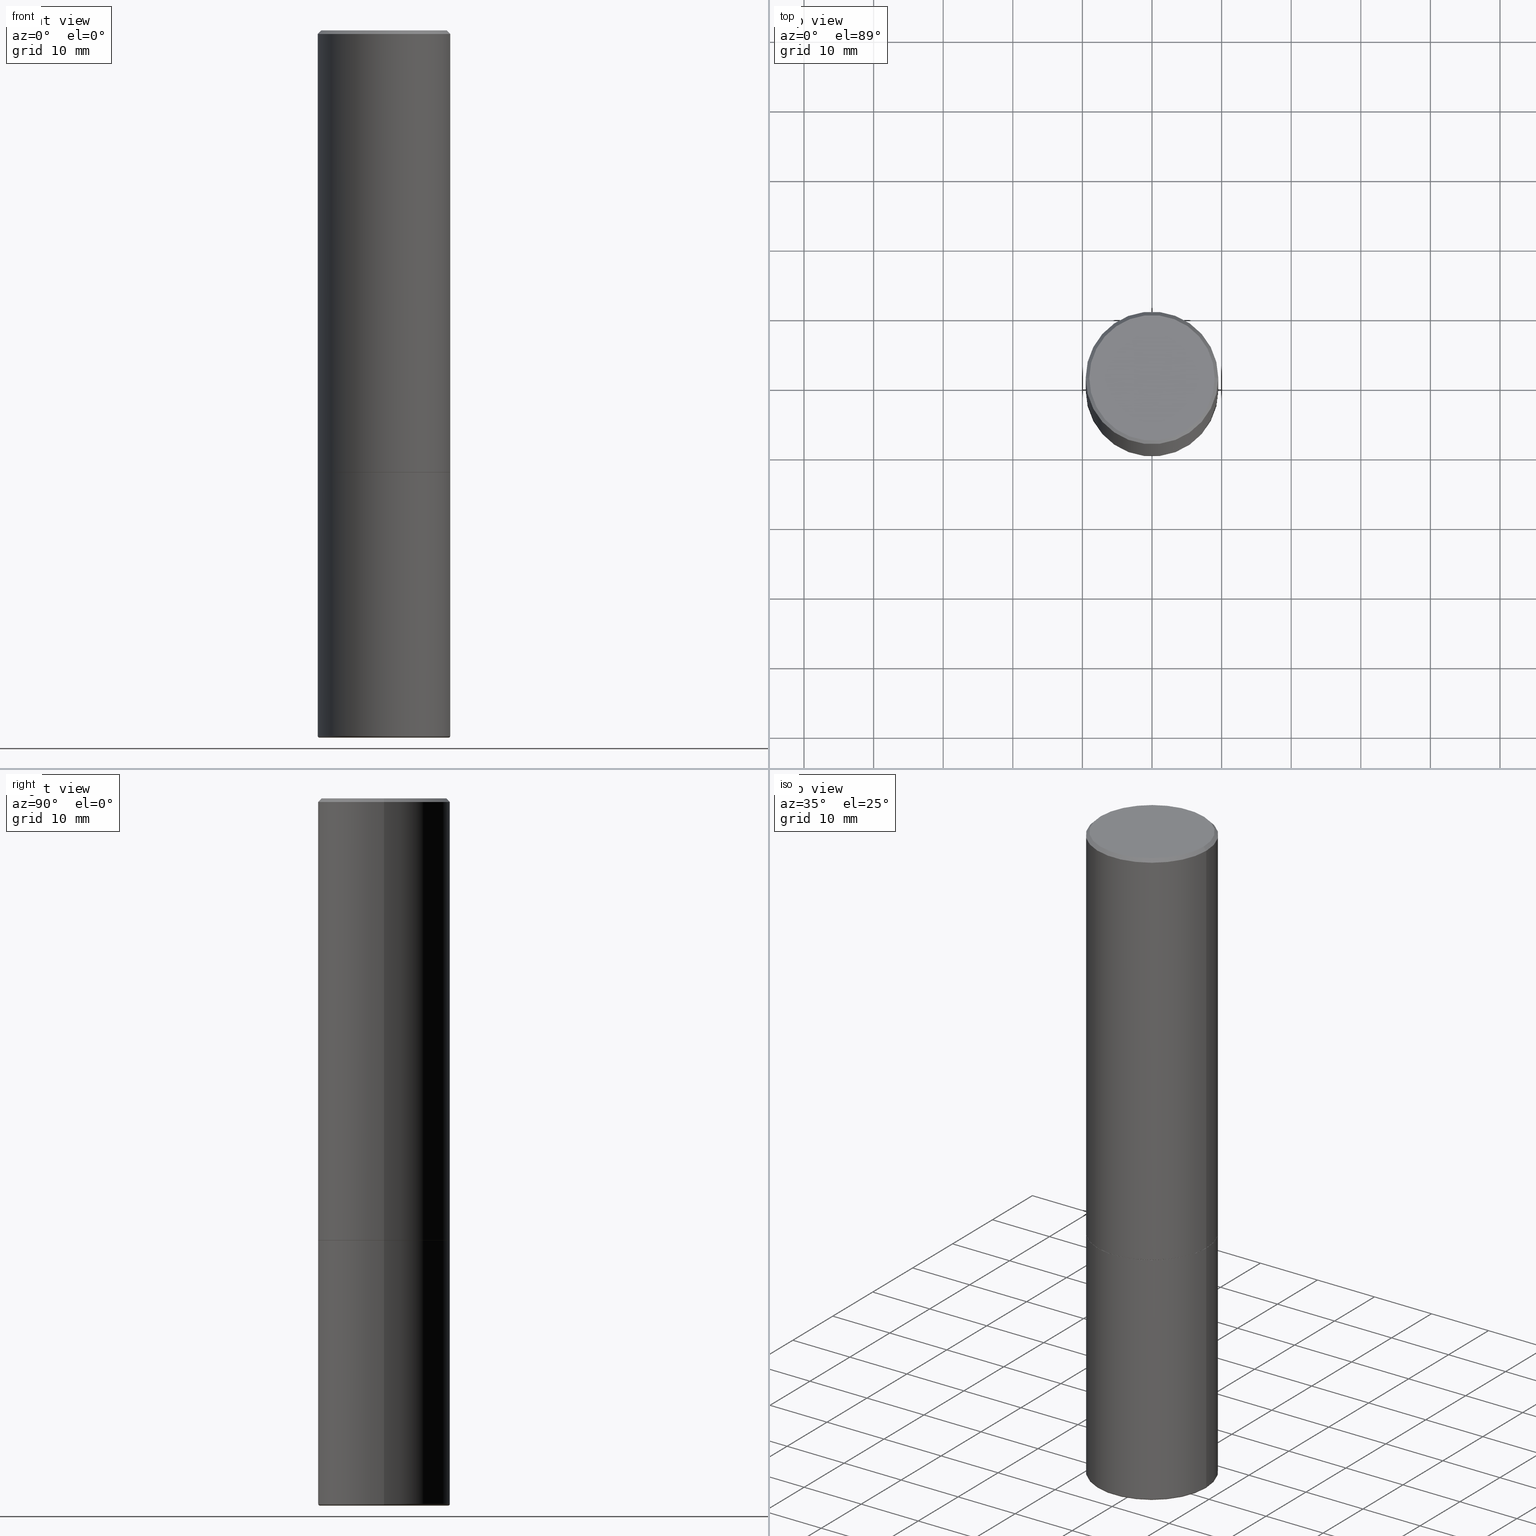
[diagram: canonical four-view strip — front | top / right | iso, engineering-drawing reading convention]
A machine part, canonical four-view strip (front | top / right | iso — engineering-drawing reading convention). The complete STEP part file that produces these views, byte-faithful:
ISO-10303-21;
HEADER;
FILE_DESCRIPTION (( 'STEP AP203' ),
    '1' );
FILE_NAME ('38864.STEP',
    '2024-03-03T17:59:17',
    ( '' ),
    ( '' ),
    'SwSTEP 2.0',
    'SolidWorks 2023',
    '' );
FILE_SCHEMA (( 'CONFIG_CONTROL_DESIGN' ));
ENDSEC;

DATA;
#1 = FACE_OUTER_BOUND ( 'NONE', #300, .T. ) ;
#2 = CC_DESIGN_PERSON_AND_ORGANIZATION_ASSIGNMENT ( #75, #359, ( #257 ) ) ;
#3 = CARTESIAN_POINT ( 'NONE',  ( 6.113672015462842613E-29, -8.728703347107864943E-15, -2.500000000000000000 ) ) ;
#4 = EDGE_CURVE ( 'NONE', #271, #11, #323, .T. ) ;
#5 = AXIS2_PLACEMENT_3D ( 'NONE', #306, #101, #67 ) ;
#6 = DIRECTION ( 'NONE',  ( -2.445468806185136597E-29, 3.491481338843145583E-15, 1.000000000000000000 ) ) ;
#7 = COORDINATED_UNIVERSAL_TIME_OFFSET ( 5, 0, .BEHIND. ) ;
#8 = ADVANCED_FACE ( 'NONE', ( #411 ), #65, .T. ) ;
#9 = DIRECTION ( 'NONE',  ( -1.000000000000000000, 7.105427357601049190E-15, 0.000000000000000000 ) ) ;
#10 = CARTESIAN_POINT ( 'NONE',  ( 0.3750000000000000555, -1.134731435124021338E-14, -2.500000000000000000 ) ) ;
#11 = VERTEX_POINT ( 'NONE', #324 ) ;
#12 = CARTESIAN_POINT ( 'NONE',  ( 9.757420536678694842E-29, -1.393101054198414910E-14, -3.989999999999999769 ) ) ;
#13 = DIRECTION ( 'NONE',  ( -2.445468806185136877E-29, 3.491481338843145188E-15, 1.000000000000000000 ) ) ;
#14 = PERSON_AND_ORGANIZATION ( #307, #347 ) ;
#15 = VECTOR ( 'NONE', #373, 39.37007874015748143 ) ;
#16 = ORIENTED_EDGE ( 'NONE', *, *, #236, .F. ) ;
#17 = FACE_OUTER_BOUND ( 'NONE', #212, .T. ) ;
#18 = ORIENTED_EDGE ( 'NONE', *, *, #56, .T. ) ;
#19 = ORIENTED_EDGE ( 'NONE', *, *, #275, .F. ) ;
#20 = DIRECTION ( 'NONE',  ( 1.000000000000000000, -6.982962677686265922E-15, 0.000000000000000000 ) ) ;
#21 = AXIS2_PLACEMENT_3D ( 'NONE', #74, #206, #40 ) ;
#22 = LOCAL_TIME ( 12, 59, 17.00000000000000000, #7 ) ;
#23 = APPLICATION_CONTEXT ( 'configuration controlled 3d designs of mechanical parts and assemblies' ) ;
#24 = CALENDAR_DATE ( 2024, 3, 3 ) ;
#25 = EDGE_LOOP ( 'NONE', ( #397, #50 ) ) ;
#26 = DATE_AND_TIME ( #155, #327 ) ;
#27 = ORIENTED_EDGE ( 'NONE', *, *, #284, .T. ) ;
#28 = PERSON_AND_ORGANIZATION_ROLE ( 'creator' ) ;
#29 = AXIS2_PLACEMENT_3D ( 'NONE', #128, #286, #299 ) ;
#30 = APPROVAL ( #266, 'UNSPECIFIED' ) ;
#31 = LINE ( 'NONE', #380, #87 ) ;
#32 = LINE ( 'NONE', #33, #15 ) ;
#33 = CARTESIAN_POINT ( 'NONE',  ( -0.3749999999999999445, 2.664535259100375303E-15, -1.844600658845589318E-29 ) ) ;
#34 = AXIS2_PLACEMENT_3D ( 'NONE', #12, #49, #325 ) ;
#35 = EDGE_CURVE ( 'NONE', #267, #178, #57, .T. ) ;
#36 = DIRECTION ( 'NONE',  ( -2.445468806185136597E-29, 3.491481338843145583E-15, 1.000000000000000000 ) ) ;
#37 = DIRECTION ( 'NONE',  ( -1.000000000000000000, 6.982962677686265922E-15, 0.000000000000000000 ) ) ;
#38 = EDGE_CURVE ( 'NONE', #217, #210, #31, .T. ) ;
#39 = AXIS2_PLACEMENT_3D ( 'NONE', #262, #66, #144 ) ;
#40 = DIRECTION ( 'NONE',  ( 1.000000000000000000, -6.982962677686264344E-15, 0.000000000000000000 ) ) ;
#41 = PRODUCT_DEFINITION_SHAPE ( 'NONE', 'NONE',  #166 ) ;
#42 = CIRCLE ( 'NONE', #162, 0.3739999999999999991 ) ;
#43 = ORIENTED_EDGE ( 'NONE', *, *, #150, .F. ) ;
#44 = EDGE_CURVE ( 'NONE', #267, #240, #116, .T. ) ;
#45 = CC_DESIGN_APPROVAL ( #30, ( #257 ) ) ;
#46 = ORIENTED_EDGE ( 'NONE', *, *, #404, .T. ) ;
#47 = ADVANCED_FACE ( 'NONE', ( #350 ), #392, .T. ) ;
#48 = DIRECTION ( 'NONE',  ( -2.445468806185136597E-29, 3.491481338843145583E-15, 1.000000000000000000 ) ) ;
#49 = DIRECTION ( 'NONE',  ( -2.445468806185136597E-29, 3.491481338843145583E-15, 1.000000000000000000 ) ) ;
#50 = ORIENTED_EDGE ( 'NONE', *, *, #284, .F. ) ;
#51 = ORIENTED_EDGE ( 'NONE', *, *, #250, .T. ) ;
#52 = ORIENTED_EDGE ( 'NONE', *, *, #241, .T. ) ;
#53 = DATE_AND_TIME ( #256, #410 ) ;
#54 = ORIENTED_EDGE ( 'NONE', *, *, #196, .F. ) ;
#55 = CARTESIAN_POINT ( 'NONE',  ( -0.3749999999999999445, -1.126647528288377341E-14, -3.989999999999999769 ) ) ;
#56 = EDGE_CURVE ( 'NONE', #238, #88, #204, .T. ) ;
#57 = CIRCLE ( 'NONE', #29, 0.01000000000000009909 ) ;
#58 = CARTESIAN_POINT ( 'NONE',  ( 0.3649999999999999356, -1.651470673272807063E-14, -4.000000000000000000 ) ) ;
#59 = EDGE_CURVE ( 'NONE', #363, #210, #175, .T. ) ;
#60 = LINE ( 'NONE', #280, #263 ) ;
#61 = DIRECTION ( 'NONE',  ( 1.000000000000000000, -6.982962677686268288E-15, 0.000000000000000000 ) ) ;
#62 = APPROVAL ( #297, 'UNSPECIFIED' ) ;
#63 = AXIS2_PLACEMENT_3D ( 'NONE', #136, #389, #255 ) ;
#64 = DIRECTION ( 'NONE',  ( -2.445468806185136597E-29, 3.491481338843145583E-15, 1.000000000000000000 ) ) ;
#65 = CYLINDRICAL_SURFACE ( 'NONE', #355, 0.3750000000000002220 ) ;
#66 = DIRECTION ( 'NONE',  ( -2.438088387897960049E-29, 3.491481338843145188E-15, 1.000000000000000000 ) ) ;
#67 = DIRECTION ( 'NONE',  ( 1.000000000000000000, -6.982962677686265922E-15, 0.000000000000000000 ) ) ;
#68 = DIRECTION ( 'NONE',  ( 1.000000000000000000, -6.982962677686263555E-15, 0.000000000000000000 ) ) ;
#69 = DIRECTION ( 'NONE',  ( -2.445468806185136597E-29, 3.491481338843145583E-15, 1.000000000000000000 ) ) ;
#70 = DIRECTION ( 'NONE',  ( -1.000000000000000000, 6.982962677686265922E-15, -4.876176775795935793E-29 ) ) ;
#71 = EDGE_CURVE ( 'NONE', #210, #363, #169, .T. ) ;
#72 = AXIS2_PLACEMENT_3D ( 'NONE', #281, #115, #181 ) ;
#73 = APPROVAL_PERSON_ORGANIZATION ( #122, #30, #336 ) ;
#74 = CARTESIAN_POINT ( 'NONE',  ( 6.113672015462842613E-29, -8.728703347107864943E-15, -2.500000000000000000 ) ) ;
#75 = PERSON_AND_ORGANIZATION ( #307, #347 ) ;
#76 = FACE_OUTER_BOUND ( 'NONE', #408, .T. ) ;
#77 = APPLICATION_PROTOCOL_DEFINITION ( 'international standard', 'config_control_design', 1994, #23 ) ;
#78 = AXIS2_PLACEMENT_3D ( 'NONE', #161, #417, #20 ) ;
#79 = VERTEX_POINT ( 'NONE', #315 ) ;
#80 = CIRCLE ( 'NONE', #369, 0.01000000000000009909 ) ;
#81 = ORIENTED_EDGE ( 'NONE', *, *, #71, .T. ) ;
#82 = CYLINDRICAL_SURFACE ( 'NONE', #135, 0.3750000000000002220 ) ;
#83 = DATE_TIME_ROLE ( 'creation_date' ) ;
#84 = ORIENTED_EDGE ( 'NONE', *, *, #186, .T. ) ;
#85 = DIMENSIONAL_EXPONENTS ( 1.000000000000000000, 0.000000000000000000, 0.000000000000000000, 0.000000000000000000, 0.000000000000000000, 0.000000000000000000, 0.000000000000000000 ) ;
#86 = ORIENTED_EDGE ( 'NONE', *, *, #270, .T. ) ;
#87 = VECTOR ( 'NONE', #100, 39.37007874015748143 ) ;
#88 = VERTEX_POINT ( 'NONE', #10 ) ;
#89 = CARTESIAN_POINT ( 'NONE',  ( -0.3739999999999999991, -6.065975061016866274E-15, -2.500000000000000000 ) ) ;
#90 = DATE_AND_TIME ( #24, #269 ) ;
#91 = CIRCLE ( 'NONE', #132, 0.3549999999999999822 ) ;
#92 = AXIS2_PLACEMENT_3D ( 'NONE', #258, #69, #318 ) ;
#93 = DIRECTION ( 'NONE',  ( 2.438088387897960049E-29, -3.491481338843145188E-15, -1.000000000000000000 ) ) ;
#94 = DIRECTION ( 'NONE',  ( -2.445468806185136597E-29, 3.491481338843145583E-15, 1.000000000000000000 ) ) ;
#95 = LINE ( 'NONE', #173, #253 ) ;
#96 = CARTESIAN_POINT ( 'NONE',  ( 0.3549999999999999822, -2.538996582575041048E-15, 1.195183497228290556E-16 ) ) ;
#97 = ORIENTED_EDGE ( 'NONE', *, *, #44, .F. ) ;
#98 = CIRCLE ( 'NONE', #326, 0.3739999999999999991 ) ;
#99 = AXIS2_PLACEMENT_3D ( 'NONE', #358, #205, #321 ) ;
#100 = DIRECTION ( 'NONE',  ( 0.7071067811865461294, -7.319954787623251312E-15, -0.7071067811865489050 ) ) ;
#101 = DIRECTION ( 'NONE',  ( -2.445468806185136597E-29, 3.491481338843145583E-15, 1.000000000000000000 ) ) ;
#102 = DIRECTION ( 'NONE',  ( 2.445468806185136597E-29, -3.491481338843145583E-15, -1.000000000000000000 ) ) ;
#103 = DIRECTION ( 'NONE',  ( 2.438088387897960049E-29, -3.491481338843145188E-15, -1.000000000000000000 ) ) ;
#104 = ADVANCED_FACE ( 'NONE', ( #142 ), #378, .T. ) ;
#105 = APPROVAL_DATE_TIME ( #203, #330 ) ;
#106 = CARTESIAN_POINT ( 'NONE',  ( 0.000000000000000000, 0.000000000000000000, 0.000000000000000000 ) ) ;
#107 = FACE_OUTER_BOUND ( 'NONE', #301, .T. ) ;
#108 = AXIS2_PLACEMENT_3D ( 'NONE', #157, #93, #379 ) ;
#109 = AXIS2_PLACEMENT_3D ( 'NONE', #3, #170, #141 ) ;
#110 = APPLICATION_PROTOCOL_DEFINITION ( 'international standard', 'config_control_design', 1994, #287 ) ;
#111 = DIRECTION ( 'NONE',  ( -1.000000000000000000, 6.982962677686265922E-15, 0.000000000000000000 ) ) ;
#112 = CARTESIAN_POINT ( 'NONE',  ( 0.000000000000000000, 0.000000000000000000, 0.000000000000000000 ) ) ;
#113 = PERSON_AND_ORGANIZATION_ROLE ( 'design_owner' ) ;
#114 = ORIENTED_EDGE ( 'NONE', *, *, #316, .T. ) ;
#115 = DIRECTION ( 'NONE',  ( -2.445468806185136597E-29, 3.491481338843145583E-15, 1.000000000000000000 ) ) ;
#116 = CIRCLE ( 'NONE', #415, 0.3649999999999999356 ) ;
#117 = AXIS2_PLACEMENT_3D ( 'NONE', #201, #36, #68 ) ;
#118 = EDGE_LOOP ( 'NONE', ( #291, #237, #334, #121 ) ) ;
#119 = ORIENTED_EDGE ( 'NONE', *, *, #250, .F. ) ;
#120 = CARTESIAN_POINT ( 'NONE',  ( -0.3750000000000001110, 2.548781377355487113E-15, -0.02000000000000008715 ) ) ;
#121 = ORIENTED_EDGE ( 'NONE', *, *, #56, .F. ) ;
#122 = PERSON_AND_ORGANIZATION ( #307, #347 ) ;
#123 = ORIENTED_EDGE ( 'NONE', *, *, #352, .F. ) ;
#124 = AXIS2_PLACEMENT_3D ( 'NONE', #106, #354, #282 ) ;
#125 = ADVANCED_FACE ( 'NONE', ( #168 ), #353, .T. ) ;
#126 = CARTESIAN_POINT ( 'NONE',  ( 0.3739999999999999991, -1.134033138856252894E-14, -2.500000000000000000 ) ) ;
#127 = DIRECTION ( 'NONE',  ( -2.445468806185136597E-29, 3.491481338843145583E-15, 1.000000000000000000 ) ) ;
#128 = CARTESIAN_POINT ( 'NONE',  ( 0.3649999999999999356, -1.647979191933963740E-14, -3.989999999999999769 ) ) ;
#129 = AXIS2_PLACEMENT_3D ( 'NONE', #188, #303, #191 ) ;
#130 = FACE_OUTER_BOUND ( 'NONE', #192, .T. ) ;
#131 = LINE ( 'NONE', #126, #145 ) ;
#132 = AXIS2_PLACEMENT_3D ( 'NONE', #278, #64, #376 ) ;
#133 = CARTESIAN_POINT ( 'NONE',  ( 4.890937612370294178E-31, -6.982962677686321191E-17, -0.02000000000000008715 ) ) ;
#134 = ADVANCED_FACE ( 'NONE', ( #228 ), #259, .F. ) ;
#135 = AXIS2_PLACEMENT_3D ( 'NONE', #229, #198, #381 ) ;
#136 = CARTESIAN_POINT ( 'NONE',  ( 9.781875224740546387E-29, -1.396592535537258233E-14, -4.000000000000000000 ) ) ;
#137 = CALENDAR_DATE ( 2024, 3, 3 ) ;
#138 = DESIGN_CONTEXT ( 'detailed design', #23, 'design' ) ;
#139 = DIRECTION ( 'NONE',  ( 1.000000000000000000, -6.982962677686267499E-15, 0.000000000000000000 ) ) ;
#140 = ORIENTED_EDGE ( 'NONE', *, *, #4, .T. ) ;
#141 = DIRECTION ( 'NONE',  ( 1.000000000000000000, -6.982962677686268288E-15, 0.000000000000000000 ) ) ;
#142 = FACE_OUTER_BOUND ( 'NONE', #233, .T. ) ;
#143 = CARTESIAN_POINT ( 'NONE',  ( 0.3749999999999999445, -1.654962154611649754E-14, -3.989999999999999769 ) ) ;
#144 = DIRECTION ( 'NONE',  ( 1.000000000000000000, -6.982962677686265922E-15, 4.876176775795935793E-29 ) ) ;
#145 = VECTOR ( 'NONE', #371, 39.37007874015748143 ) ;
#146 = CARTESIAN_POINT ( 'NONE',  ( -0.3739999999999999991, -6.071273515365089465E-15, -2.500000000000000000 ) ) ;
#147 = CONICAL_SURFACE ( 'NONE', #99, 0.3739999999999999991, 0.7853981633976873100 ) ;
#148 = CARTESIAN_POINT ( 'NONE',  ( 0.000000000000000000, 0.000000000000000000, 0.000000000000000000 ) ) ;
#149 = PERSON_AND_ORGANIZATION ( #307, #347 ) ;
#150 = EDGE_CURVE ( 'NONE', #88, #238, #361, .T. ) ;
#151 = AXIS2_PLACEMENT_3D ( 'NONE', #234, #6, #199 ) ;
#152 = ORIENTED_EDGE ( 'NONE', *, *, #316, .F. ) ;
#153 = ORIENTED_EDGE ( 'NONE', *, *, #342, .F. ) ;
#154 = ORIENTED_EDGE ( 'NONE', *, *, #236, .T. ) ;
#155 = CALENDAR_DATE ( 2024, 3, 3 ) ;
#156 = AXIS2_PLACEMENT_3D ( 'NONE', #133, #102, #111 ) ;
#157 = CARTESIAN_POINT ( 'NONE',  ( 2.478951750578624209E-15, 0.3549999999999999822, -1.179716700427910864E-15 ) ) ;
#158 = PRODUCT_RELATED_PRODUCT_CATEGORY ( 'detail', '', ( #335 ) ) ;
#159 = APPROVAL_DATE_TIME ( #90, #62 ) ;
#160 = ORIENTED_EDGE ( 'NONE', *, *, #59, .T. ) ;
#161 = CARTESIAN_POINT ( 'NONE',  ( 6.111226546656657010E-29, -8.725211865769021935E-15, -2.499000000000000110 ) ) ;
#162 = AXIS2_PLACEMENT_3D ( 'NONE', #193, #222, #61 ) ;
#163 = CARTESIAN_POINT ( 'NONE',  ( 0.3750000000000001110, -2.642516375941188423E-15, -0.02000000000000008715 ) ) ;
#164 = EDGE_LOOP ( 'NONE', ( #338, #46, #152, #400 ) ) ;
#165 = CARTESIAN_POINT ( 'NONE',  ( -0.3649999999999999356, -1.133752955645978349E-14, -3.989999999999999769 ) ) ;
#166 = PRODUCT_DEFINITION ( 'UNKNOWN', '', #257, #138 ) ;
#167 = LINE ( 'NONE', #349, #184 ) ;
#168 = FACE_OUTER_BOUND ( 'NONE', #118, .T. ) ;
#169 = CIRCLE ( 'NONE', #151, 0.3750000000000001110 ) ;
#170 = DIRECTION ( 'NONE',  ( -2.445468806185136597E-29, 3.491481338843145583E-15, 1.000000000000000000 ) ) ;
#171 = EDGE_CURVE ( 'NONE', #11, #363, #95, .T. ) ;
#172 = ORIENTED_EDGE ( 'NONE', *, *, #352, .T. ) ;
#173 = CARTESIAN_POINT ( 'NONE',  ( -0.3750000000000002220, 2.664535259100377275E-15, -1.844600658845590719E-29 ) ) ;
#174 = PERSON_AND_ORGANIZATION_ROLE ( 'creator' ) ;
#175 = CIRCLE ( 'NONE', #5, 0.3750000000000001110 ) ;
#176 = TOROIDAL_SURFACE ( 'NONE', #34, 0.3649999999999999356, 0.01000000000000009909 ) ;
#177 = MECHANICAL_CONTEXT ( 'NONE', #287, 'mechanical' ) ;
#178 = VERTEX_POINT ( 'NONE', #143 ) ;
#179 = APPROVAL_STATUS ( 'not_yet_approved' ) ;
#180 = EDGE_LOOP ( 'NONE', ( #329, #84, #298, #405 ) ) ;
#181 = DIRECTION ( 'NONE',  ( 1.000000000000000000, -6.982962677686264344E-15, 0.000000000000000000 ) ) ;
#182 = CC_DESIGN_DATE_AND_TIME_ASSIGNMENT ( #26, #83, ( #166 ) ) ;
#183 = ORIENTED_EDGE ( 'NONE', *, *, #270, .F. ) ;
#184 = VECTOR ( 'NONE', #197, 39.37007874015748143 ) ;
#185 = EDGE_LOOP ( 'NONE', ( #52, #140, #123, #183 ) ) ;
#186 = EDGE_CURVE ( 'NONE', #11, #370, #401, .T. ) ;
#187 = EDGE_LOOP ( 'NONE', ( #360, #16, #51, #160 ) ) ;
#188 = CARTESIAN_POINT ( 'NONE',  ( -2.922783960138615261E-45, 4.172960877065252270E-31, 1.195183497228115035E-16 ) ) ;
#189 = AXIS2_PLACEMENT_3D ( 'NONE', #265, #394, #235 ) ;
#190 = CC_DESIGN_SECURITY_CLASSIFICATION ( #402, ( #257 ) ) ;
#191 = DIRECTION ( 'NONE',  ( 1.000000000000000000, -6.982962677686265922E-15, 4.874095744806113407E-29 ) ) ;
#192 = EDGE_LOOP ( 'NONE', ( #216, #27, #86, #214 ) ) ;
#193 = CARTESIAN_POINT ( 'NONE',  ( 6.113672015462842613E-29, -8.728703347107864943E-15, -2.500000000000000000 ) ) ;
#194 = DIRECTION ( 'NONE',  ( -2.445468806185136597E-29, 3.491481338843145583E-15, 1.000000000000000000 ) ) ;
#195 = CIRCLE ( 'NONE', #279, 0.3649999999999999356 ) ;
#196 = EDGE_CURVE ( 'NONE', #273, #178, #226, .T. ) ;
#197 = DIRECTION ( 'NONE',  ( -2.445468806185136877E-29, 3.491481338843145188E-15, 1.000000000000000000 ) ) ;
#198 = DIRECTION ( 'NONE',  ( -2.445468806185136597E-29, 3.491481338843145583E-15, 1.000000000000000000 ) ) ;
#199 = DIRECTION ( 'NONE',  ( 1.000000000000000000, -6.982962677686265922E-15, 0.000000000000000000 ) ) ;
#200 = CALENDAR_DATE ( 2024, 3, 3 ) ;
#201 = CARTESIAN_POINT ( 'NONE',  ( 9.757420536678694842E-29, -1.393101054198414910E-14, -3.989999999999999769 ) ) ;
#202 = CYLINDRICAL_SURFACE ( 'NONE', #92, 0.3749999999999999445 ) ;
#203 = DATE_AND_TIME ( #200, #320 ) ;
#204 = CIRCLE ( 'NONE', #72, 0.3750000000000000555 ) ;
#205 = DIRECTION ( 'NONE',  ( -2.445468806185136597E-29, 3.491481338843145583E-15, 1.000000000000000000 ) ) ;
#206 = DIRECTION ( 'NONE',  ( -2.445468806185136597E-29, 3.491481338843145583E-15, 1.000000000000000000 ) ) ;
#207 = PERSON_AND_ORGANIZATION_ROLE ( 'classification_officer' ) ;
#208 = DIRECTION ( 'NONE',  ( 1.000000000000000000, 0.000000000000000000, 0.000000000000000000 ) ) ;
#209 = DATE_TIME_ROLE ( 'classification_date' ) ;
#210 = VERTEX_POINT ( 'NONE', #163 ) ;
#211 = ADVANCED_FACE ( 'NONE', ( #1 ), #416, .F. ) ;
#212 = EDGE_LOOP ( 'NONE', ( #172, #365, #243, #277 ) ) ;
#213 =( CONVERSION_BASED_UNIT ( 'INCH', #331 ) LENGTH_UNIT ( ) NAMED_UNIT ( #85 ) );
#214 = ORIENTED_EDGE ( 'NONE', *, *, #186, .F. ) ;
#215 = CONICAL_SURFACE ( 'NONE', #109, 0.3739999999999999991, 0.7853981633976873100 ) ;
#216 = ORIENTED_EDGE ( 'NONE', *, *, #4, .F. ) ;
#217 = VERTEX_POINT ( 'NONE', #96 ) ;
#218 = AXIS2_PLACEMENT_3D ( 'NONE', #345, #194, #311 ) ;
#219 = CC_DESIGN_APPROVAL ( #330, ( #402 ) ) ;
#220 = CC_DESIGN_DATE_AND_TIME_ASSIGNMENT ( #395, #209, ( #402 ) ) ;
#221 = CARTESIAN_POINT ( 'NONE',  ( -0.3649999999999999356, -1.131945982636599743E-14, -4.000000000000000000 ) ) ;
#222 = DIRECTION ( 'NONE',  ( -2.445468806185136597E-29, 3.491481338843145583E-15, 1.000000000000000000 ) ) ;
#223 = DIRECTION ( 'NONE',  ( 1.000000000000000000, -6.982962677686265922E-15, 0.000000000000000000 ) ) ;
#224 = EDGE_CURVE ( 'NONE', #178, #88, #276, .T. ) ;
#225 = DIRECTION ( 'NONE',  ( -2.445468806185136597E-29, 3.491481338843145583E-15, 1.000000000000000000 ) ) ;
#226 = CIRCLE ( 'NONE', #218, 0.3749999999999999445 ) ;
#227 = CARTESIAN_POINT ( 'NONE',  ( 9.781875224740546387E-29, -1.396592535537258233E-14, -4.000000000000000000 ) ) ;
#228 = FACE_OUTER_BOUND ( 'NONE', #247, .T. ) ;
#229 = CARTESIAN_POINT ( 'NONE',  ( 0.000000000000000000, 0.000000000000000000, 0.000000000000000000 ) ) ;
#230 = EDGE_CURVE ( 'NONE', #273, #238, #32, .T. ) ;
#231 = SHAPE_DEFINITION_REPRESENTATION ( #41, #407 ) ;
#232 = FACE_OUTER_BOUND ( 'NONE', #185, .T. ) ;
#233 = EDGE_LOOP ( 'NONE', ( #97, #153 ) ) ;
#234 = CARTESIAN_POINT ( 'NONE',  ( 4.890937612370294178E-31, -6.982962677686321191E-17, -0.02000000000000008715 ) ) ;
#235 = DIRECTION ( 'NONE',  ( 1.000000000000000000, -6.982962677686267499E-15, 4.883557194083113462E-29 ) ) ;
#236 = EDGE_CURVE ( 'NONE', #79, #217, #91, .T. ) ;
#237 = ORIENTED_EDGE ( 'NONE', *, *, #196, .T. ) ;
#238 = VERTEX_POINT ( 'NONE', #312 ) ;
#239 =( NAMED_UNIT ( * ) PLANE_ANGLE_UNIT ( ) SI_UNIT ( $, .RADIAN. ) );
#240 = VERTEX_POINT ( 'NONE', #221 ) ;
#241 = EDGE_CURVE ( 'NONE', #272, #271, #42, .T. ) ;
#242 = PERSON_AND_ORGANIZATION ( #307, #347 ) ;
#243 = ORIENTED_EDGE ( 'NONE', *, *, #71, .F. ) ;
#244 = COORDINATED_UNIVERSAL_TIME_OFFSET ( 5, 0, .BEHIND. ) ;
#245 = CIRCLE ( 'NONE', #78, 0.3750000000000002776 ) ;
#246 = MANIFOLD_SOLID_BREP ( 'Body-Move/Copy2[2]', #340 ) ;
#247 = EDGE_LOOP ( 'NONE', ( #328, #18 ) ) ;
#248 = COORDINATED_UNIVERSAL_TIME_OFFSET ( 5, 0, .BEHIND. ) ;
#249 = DIRECTION ( 'NONE',  ( 1.000000000000000000, -6.982962677686268288E-15, 0.000000000000000000 ) ) ;
#250 = EDGE_CURVE ( 'NONE', #79, #363, #60, .T. ) ;
#251 = MANIFOLD_SOLID_BREP ( 'Body-Move/Copy2[1]', #346 ) ;
#252 = ORIENTED_EDGE ( 'NONE', *, *, #224, .F. ) ;
#253 = VECTOR ( 'NONE', #13, 39.37007874015748143 ) ;
#254 = CC_DESIGN_PERSON_AND_ORGANIZATION_ASSIGNMENT ( #14, #207, ( #402 ) ) ;
#255 = DIRECTION ( 'NONE',  ( -1.000000000000000000, 6.982962677686265922E-15, -4.876176775795935793E-29 ) ) ;
#256 = CALENDAR_DATE ( 2024, 3, 3 ) ;
#257 = PRODUCT_DEFINITION_FORMATION_WITH_SPECIFIED_SOURCE ( 'ANY', '', #335, .NOT_KNOWN. ) ;
#258 = CARTESIAN_POINT ( 'NONE',  ( 0.000000000000000000, 0.000000000000000000, 0.000000000000000000 ) ) ;
#259 = PLANE ( 'NONE',  #375 ) ;
#260 = PERSON_AND_ORGANIZATION ( #307, #347 ) ;
#261 = DIRECTION ( 'NONE',  ( 2.445468806185136597E-29, -3.491481338843145583E-15, -1.000000000000000000 ) ) ;
#262 = CARTESIAN_POINT ( 'NONE',  ( 6.113672015462842613E-29, -8.728703347107864943E-15, -2.500000000000000000 ) ) ;
#263 = VECTOR ( 'NONE', #418, 39.37007874015748143 ) ;
#264 = APPROVAL_PERSON_ORGANIZATION ( #260, #330, #290 ) ;
#265 = CARTESIAN_POINT ( 'NONE',  ( 9.757420536678694842E-29, -1.393101054198414910E-14, -3.989999999999999769 ) ) ;
#266 = APPROVAL_STATUS ( 'not_yet_approved' ) ;
#267 = VERTEX_POINT ( 'NONE', #58 ) ;
#268 = ORIENTED_EDGE ( 'NONE', *, *, #230, .T. ) ;
#269 = LOCAL_TIME ( 12, 59, 17.00000000000000000, #374 ) ;
#270 = EDGE_CURVE ( 'NONE', #272, #370, #131, .T. ) ;
#271 = VERTEX_POINT ( 'NONE', #89 ) ;
#272 = VERTEX_POINT ( 'NONE', #339 ) ;
#273 = VERTEX_POINT ( 'NONE', #55 ) ;
#274 = CIRCLE ( 'NONE', #129, 0.3549999999999999822 ) ;
#275 = EDGE_CURVE ( 'NONE', #217, #79, #274, .T. ) ;
#276 = LINE ( 'NONE', #377, #333 ) ;
#277 = ORIENTED_EDGE ( 'NONE', *, *, #294, .F. ) ;
#278 = CARTESIAN_POINT ( 'NONE',  ( -2.922783960138615261E-45, 4.172960877065252270E-31, 1.195183497228115035E-16 ) ) ;
#279 = AXIS2_PLACEMENT_3D ( 'NONE', #317, #283, #139 ) ;
#280 = CARTESIAN_POINT ( 'NONE',  ( -0.3750000000000001110, 2.548781377355487113E-15, -0.02000000000000008715 ) ) ;
#281 = CARTESIAN_POINT ( 'NONE',  ( 6.113672015462842613E-29, -8.728703347107864943E-15, -2.500000000000000000 ) ) ;
#282 = DIRECTION ( 'NONE',  ( 1.000000000000000000, -6.982962677686266711E-15, 4.876176775795935793E-29 ) ) ;
#283 = DIRECTION ( 'NONE',  ( -2.445468806185136597E-29, 3.491481338843145583E-15, 1.000000000000000000 ) ) ;
#284 = EDGE_CURVE ( 'NONE', #271, #272, #98, .T. ) ;
#285 = COORDINATED_UNIVERSAL_TIME_OFFSET ( 5, 0, .BEHIND. ) ;
#286 = DIRECTION ( 'NONE',  ( -6.982962677686266711E-15, -1.000000000000000000, 3.491481338843145583E-15 ) ) ;
#287 = APPLICATION_CONTEXT ( 'configuration controlled 3d designs of mechanical parts and assemblies' ) ;
#288 = CARTESIAN_POINT ( 'NONE',  ( 0.3750000000000002776, -1.134382286990137353E-14, -2.499000000000000110 ) ) ;
#289 = ADVANCED_FACE ( 'NONE', ( #308 ), #390, .F. ) ;
#290 = APPROVAL_ROLE ( '' ) ;
#291 = ORIENTED_EDGE ( 'NONE', *, *, #230, .F. ) ;
#292 = SECURITY_CLASSIFICATION_LEVEL ( 'unclassified' ) ;
#293 = ORIENTED_EDGE ( 'NONE', *, *, #275, .T. ) ;
#294 = EDGE_CURVE ( 'NONE', #370, #210, #167, .T. ) ;
#295 = ORIENTED_EDGE ( 'NONE', *, *, #342, .T. ) ;
#296 = VECTOR ( 'NONE', #383, 39.37007874015748143 ) ;
#297 = APPROVAL_STATUS ( 'not_yet_approved' ) ;
#298 = ORIENTED_EDGE ( 'NONE', *, *, #294, .T. ) ;
#299 = DIRECTION ( 'NONE',  ( 1.000000000000000000, -6.982962677686262766E-15, 0.000000000000000000 ) ) ;
#300 = EDGE_LOOP ( 'NONE', ( #154, #293 ) ) ;
#301 = EDGE_LOOP ( 'NONE', ( #19, #366, #81, #119 ) ) ;
#302 = ADVANCED_FACE ( 'NONE', ( #107 ), #319, .T. ) ;
#303 = DIRECTION ( 'NONE',  ( -2.445468806185136597E-29, 3.491481338843145583E-15, 1.000000000000000000 ) ) ;
#304 = TOROIDAL_SURFACE ( 'NONE', #189, 0.3649999999999999356, 0.01000000000000009909 ) ;
#305 = APPROVAL_PERSON_ORGANIZATION ( #343, #62, #341 ) ;
#306 = CARTESIAN_POINT ( 'NONE',  ( 4.890937612370294178E-31, -6.982962677686321191E-17, -0.02000000000000008715 ) ) ;
#307 = PERSON ( 'UNSPECIFIED', 'UNSPECIFIED', 'UNSPECIFIED', ('UNSPECIFIED'), ('UNSPECIFIED'), ('UNSPECIFIED') ) ;
#308 = FACE_OUTER_BOUND ( 'NONE', #25, .T. ) ;
#309 = DIRECTION ( 'NONE',  ( 1.000000000000000000, -6.982962677686267499E-15, 0.000000000000000000 ) ) ;
#310 = CIRCLE ( 'NONE', #117, 0.3749999999999999445 ) ;
#311 = DIRECTION ( 'NONE',  ( 1.000000000000000000, -6.982962677686263555E-15, 0.000000000000000000 ) ) ;
#312 = CARTESIAN_POINT ( 'NONE',  ( -0.3750000000000000555, -8.665321685445630537E-15, -2.500000000000000000 ) ) ;
#313 = CARTESIAN_POINT ( 'NONE',  ( 4.890937612370294178E-31, -6.982962677686321191E-17, -0.02000000000000008715 ) ) ;
#314 = FACE_OUTER_BOUND ( 'NONE', #414, .T. ) ;
#315 = CARTESIAN_POINT ( 'NONE',  ( -0.3549999999999999822, 2.513866563967055858E-15, 1.195183497227940499E-16 ) ) ;
#316 = EDGE_CURVE ( 'NONE', #178, #273, #310, .T. ) ;
#317 = CARTESIAN_POINT ( 'NONE',  ( 9.781875224740546387E-29, -1.396592535537258233E-14, -4.000000000000000000 ) ) ;
#318 = DIRECTION ( 'NONE',  ( 1.000000000000000000, -6.982962677686266711E-15, 4.876176775795935793E-29 ) ) ;
#319 = CONICAL_SURFACE ( 'NONE', #156, 0.3750000000000001110, 0.7853981633974463916 ) ;
#320 = LOCAL_TIME ( 12, 59, 17.00000000000000000, #285 ) ;
#321 = DIRECTION ( 'NONE',  ( 1.000000000000000000, -6.982962677686268288E-15, 0.000000000000000000 ) ) ;
#322 = CC_DESIGN_PERSON_AND_ORGANIZATION_ASSIGNMENT ( #396, #113, ( #335 ) ) ;
#323 = LINE ( 'NONE', #146, #296 ) ;
#324 = CARTESIAN_POINT ( 'NONE',  ( -0.3750000000000002776, -1.732985487172563764E-15, -2.499000000000000110 ) ) ;
#325 = DIRECTION ( 'NONE',  ( 1.000000000000000000, -6.982962677686267499E-15, 4.883557194083113462E-29 ) ) ;
#326 = AXIS2_PLACEMENT_3D ( 'NONE', #412, #127, #249 ) ;
#327 = LOCAL_TIME ( 12, 59, 17.00000000000000000, #244 ) ;
#328 = ORIENTED_EDGE ( 'NONE', *, *, #150, .T. ) ;
#329 = ORIENTED_EDGE ( 'NONE', *, *, #171, .F. ) ;
#330 = APPROVAL ( #179, 'UNSPECIFIED' ) ;
#331 = LENGTH_MEASURE_WITH_UNIT ( LENGTH_MEASURE( 0.02539999999999999897 ), #399 );
#332 = ORIENTED_EDGE ( 'NONE', *, *, #35, .T. ) ;
#333 = VECTOR ( 'NONE', #344, 39.37007874015748143 ) ;
#334 = ORIENTED_EDGE ( 'NONE', *, *, #224, .T. ) ;
#335 = PRODUCT ( '38864', '38864', '', ( #177 ) ) ;
#336 = APPROVAL_ROLE ( '' ) ;
#337 = CC_DESIGN_PERSON_AND_ORGANIZATION_ASSIGNMENT ( #242, #28, ( #166 ) ) ;
#338 = ORIENTED_EDGE ( 'NONE', *, *, #44, .T. ) ;
#339 = CARTESIAN_POINT ( 'NONE',  ( 0.3739999999999999991, -1.134033138856252894E-14, -2.500000000000000000 ) ) ;
#340 = CLOSED_SHELL ( 'NONE', ( #384, #388, #302, #47, #8, #406, #289, #211 ) ) ;
#341 = APPROVAL_ROLE ( '' ) ;
#342 = EDGE_CURVE ( 'NONE', #240, #267, #195, .T. ) ;
#343 = PERSON_AND_ORGANIZATION ( #307, #347 ) ;
#344 = DIRECTION ( 'NONE',  ( -2.445468806185136877E-29, 3.491481338843145188E-15, 1.000000000000000000 ) ) ;
#345 = CARTESIAN_POINT ( 'NONE',  ( 9.757420536678694842E-29, -1.393101054198414910E-14, -3.989999999999999769 ) ) ;
#346 = CLOSED_SHELL ( 'NONE', ( #398, #413, #134, #125, #364, #104 ) ) ;
#347 = ORGANIZATION ( 'UNSPECIFIED', 'UNSPECIFIED', '' ) ;
#348 = DIRECTION ( 'NONE',  ( 1.000000000000000000, -6.982962677686266711E-15, 4.876176775795935793E-29 ) ) ;
#349 = CARTESIAN_POINT ( 'NONE',  ( 0.3750000000000002220, -2.618611004132351594E-15, 1.828566290923477043E-29 ) ) ;
#350 = FACE_OUTER_BOUND ( 'NONE', #187, .T. ) ;
#351 = FACE_OUTER_BOUND ( 'NONE', #164, .T. ) ;
#352 = EDGE_CURVE ( 'NONE', #370, #11, #245, .T. ) ;
#353 = CYLINDRICAL_SURFACE ( 'NONE', #124, 0.3749999999999999445 ) ;
#354 = DIRECTION ( 'NONE',  ( -2.445468806185136597E-29, 3.491481338843145583E-15, 1.000000000000000000 ) ) ;
#355 = AXIS2_PLACEMENT_3D ( 'NONE', #112, #48, #348 ) ;
#356 = AXIS2_PLACEMENT_3D ( 'NONE', #148, #393, #208 ) ;
#357 = APPROVAL_DATE_TIME ( #53, #30 ) ;
#358 = CARTESIAN_POINT ( 'NONE',  ( 6.113672015462842613E-29, -8.728703347107864943E-15, -2.500000000000000000 ) ) ;
#359 = PERSON_AND_ORGANIZATION_ROLE ( 'design_supplier' ) ;
#360 = ORIENTED_EDGE ( 'NONE', *, *, #38, .F. ) ;
#361 = CIRCLE ( 'NONE', #21, 0.3750000000000000555 ) ;
#362 = CC_DESIGN_APPROVAL ( #62, ( #166 ) ) ;
#363 = VERTEX_POINT ( 'NONE', #120 ) ;
#364 = ADVANCED_FACE ( 'NONE', ( #76 ), #304, .T. ) ;
#365 = ORIENTED_EDGE ( 'NONE', *, *, #171, .T. ) ;
#366 = ORIENTED_EDGE ( 'NONE', *, *, #38, .T. ) ;
#367 = AXIS2_PLACEMENT_3D ( 'NONE', #313, #261, #37 ) ;
#368 = CC_DESIGN_PERSON_AND_ORGANIZATION_ASSIGNMENT ( #149, #174, ( #257 ) ) ;
#369 = AXIS2_PLACEMENT_3D ( 'NONE', #165, #385, #9 ) ;
#370 = VERTEX_POINT ( 'NONE', #288 ) ;
#371 = DIRECTION ( 'NONE',  ( 0.7071067811867165487, -2.468850131084027659E-15, 0.7071067811863784858 ) ) ;
#372 = UNCERTAINTY_MEASURE_WITH_UNIT (LENGTH_MEASURE( 1.000000000000000082E-05 ), #213, 'distance_accuracy_value', 'NONE');
#373 = DIRECTION ( 'NONE',  ( -2.445468806185136877E-29, 3.491481338843145188E-15, 1.000000000000000000 ) ) ;
#374 = COORDINATED_UNIVERSAL_TIME_OFFSET ( 5, 0, .BEHIND. ) ;
#375 = AXIS2_PLACEMENT_3D ( 'NONE', #387, #103, #70 ) ;
#376 = DIRECTION ( 'NONE',  ( 1.000000000000000000, -6.982962677686265922E-15, 4.874095744806113407E-29 ) ) ;
#377 = CARTESIAN_POINT ( 'NONE',  ( 0.3749999999999999445, -2.618611004132349622E-15, 1.828566290923475642E-29 ) ) ;
#378 = PLANE ( 'NONE',  #63 ) ;
#379 = DIRECTION ( 'NONE',  ( -1.000000000000000000, 6.982962677686265922E-15, -4.876176775795935793E-29 ) ) ;
#380 = CARTESIAN_POINT ( 'NONE',  ( 0.3750000000000001110, -2.642516375941188423E-15, -0.02000000000000008715 ) ) ;
#381 = DIRECTION ( 'NONE',  ( 1.000000000000000000, -6.982962677686266711E-15, 4.876176775795935793E-29 ) ) ;
#382 = CARTESIAN_POINT ( 'NONE',  ( 6.111226546656657010E-29, -8.725211865769021935E-15, -2.499000000000000110 ) ) ;
#383 = DIRECTION ( 'NONE',  ( -0.7071067811867165487, 7.493145998870964739E-15, 0.7071067811863784858 ) ) ;
#384 = ADVANCED_FACE ( 'NONE', ( #232 ), #147, .T. ) ;
#385 = DIRECTION ( 'NONE',  ( 7.105427357601001859E-15, 1.000000000000000000, -3.491481338843145583E-15 ) ) ;
#386 =( GEOMETRIC_REPRESENTATION_CONTEXT ( 3 ) GLOBAL_UNCERTAINTY_ASSIGNED_CONTEXT ( ( #372 ) ) GLOBAL_UNIT_ASSIGNED_CONTEXT ( ( #213, #239, #391 ) ) REPRESENTATION_CONTEXT ( 'NONE', 'WORKASPACE' ) );
#387 = CARTESIAN_POINT ( 'NONE',  ( 6.113672015462842613E-29, -8.728703347107864943E-15, -2.500000000000000000 ) ) ;
#388 = ADVANCED_FACE ( 'NONE', ( #17 ), #82, .T. ) ;
#389 = DIRECTION ( 'NONE',  ( 2.438088387897960049E-29, -3.491481338843145188E-15, -1.000000000000000000 ) ) ;
#390 = PLANE ( 'NONE',  #39 ) ;
#391 =( NAMED_UNIT ( * ) SI_UNIT ( $, .STERADIAN. ) SOLID_ANGLE_UNIT ( ) );
#392 = CONICAL_SURFACE ( 'NONE', #367, 0.3750000000000001110, 0.7853981633974463916 ) ;
#393 = DIRECTION ( 'NONE',  ( 0.000000000000000000, 0.000000000000000000, 1.000000000000000000 ) ) ;
#394 = DIRECTION ( 'NONE',  ( -2.445468806185136597E-29, 3.491481338843145583E-15, 1.000000000000000000 ) ) ;
#395 = DATE_AND_TIME ( #137, #22 ) ;
#396 = PERSON_AND_ORGANIZATION ( #307, #347 ) ;
#397 = ORIENTED_EDGE ( 'NONE', *, *, #241, .F. ) ;
#398 = ADVANCED_FACE ( 'NONE', ( #314 ), #202, .T. ) ;
#399 =( LENGTH_UNIT ( ) NAMED_UNIT ( * ) SI_UNIT ( $, .METRE. ) );
#400 = ORIENTED_EDGE ( 'NONE', *, *, #35, .F. ) ;
#401 = CIRCLE ( 'NONE', #409, 0.3750000000000002776 ) ;
#402 = SECURITY_CLASSIFICATION ( '', '', #292 ) ;
#403 = ORIENTED_EDGE ( 'NONE', *, *, #404, .F. ) ;
#404 = EDGE_CURVE ( 'NONE', #240, #273, #80, .T. ) ;
#405 = ORIENTED_EDGE ( 'NONE', *, *, #59, .F. ) ;
#406 = ADVANCED_FACE ( 'NONE', ( #130 ), #215, .T. ) ;
#407 = ADVANCED_BREP_SHAPE_REPRESENTATION ( '38864', ( #251, #246, #356 ), #386 ) ;
#408 = EDGE_LOOP ( 'NONE', ( #403, #295, #332, #54 ) ) ;
#409 = AXIS2_PLACEMENT_3D ( 'NONE', #382, #225, #223 ) ;
#410 = LOCAL_TIME ( 12, 59, 17.00000000000000000, #248 ) ;
#411 = FACE_OUTER_BOUND ( 'NONE', #180, .T. ) ;
#412 = CARTESIAN_POINT ( 'NONE',  ( 6.113672015462842613E-29, -8.728703347107864943E-15, -2.500000000000000000 ) ) ;
#413 = ADVANCED_FACE ( 'NONE', ( #351 ), #176, .T. ) ;
#414 = EDGE_LOOP ( 'NONE', ( #114, #268, #43, #252 ) ) ;
#415 = AXIS2_PLACEMENT_3D ( 'NONE', #227, #94, #309 ) ;
#416 = PLANE ( 'NONE',  #108 ) ;
#417 = DIRECTION ( 'NONE',  ( -2.445468806185136597E-29, 3.491481338843145583E-15, 1.000000000000000000 ) ) ;
#418 = DIRECTION ( 'NONE',  ( -0.7071067811865461294, 2.468850131082242072E-15, -0.7071067811865489050 ) ) ;
ENDSEC;
END-ISO-10303-21;
